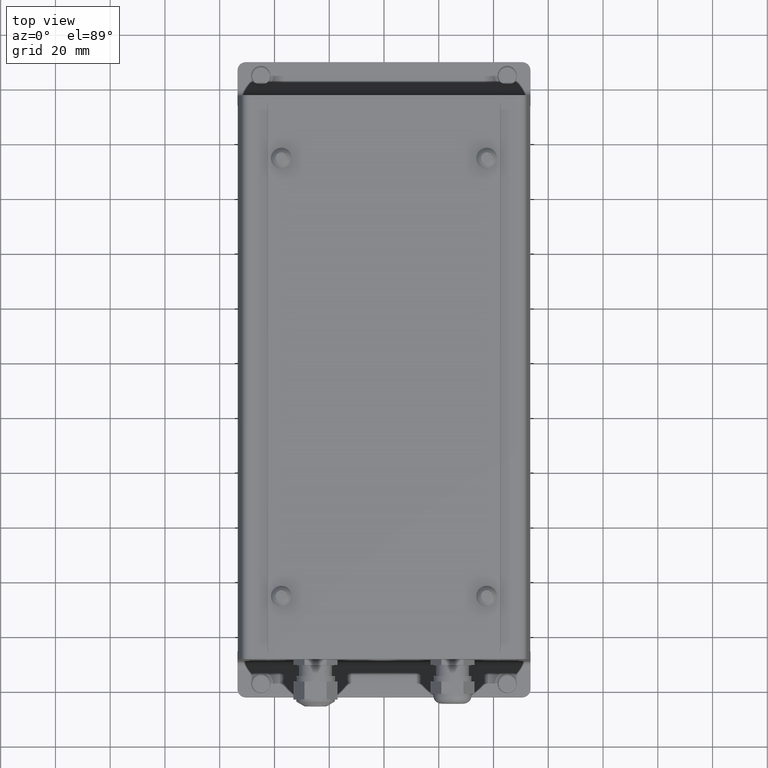
[diagram: clean part render]
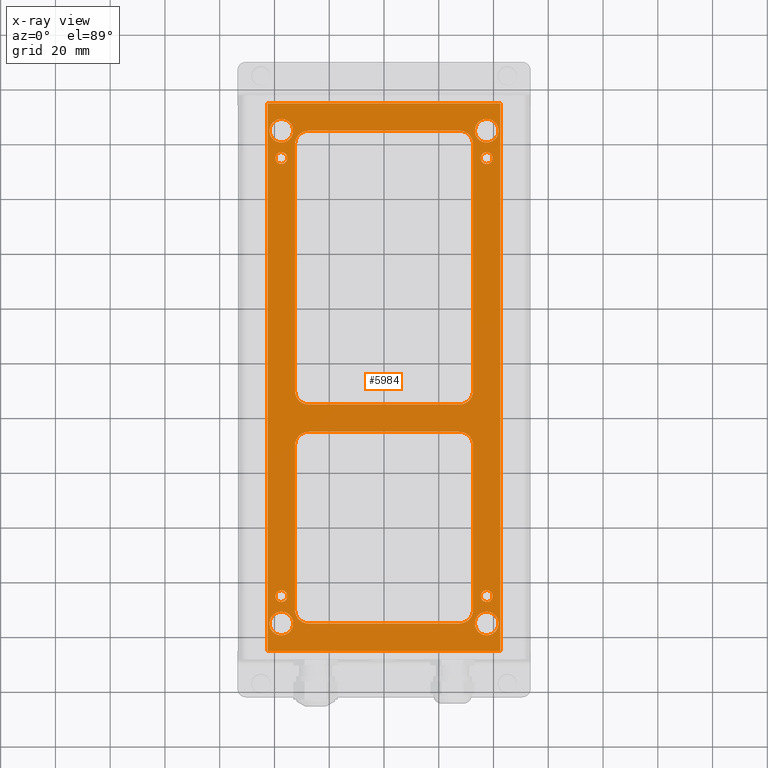
[diagram: x-ray — body ghosted, one internal face saturated and labeled with its STEP entity id]
A machine part, top view, then the same camera in x-ray: the body is ghosted and one INTERNAL B-rep face — a face not visible from any outside direction — is saturated and labeled: STEP entity #5984.
In plain terms, the highlighted planar face has unit normal (0, 0, 1).
Its self-contained STEP definition (entity closure, byte-faithful):
#152=CARTESIAN_POINT('',(-37.499999999999673,24.499934600000412,94.299999999999997));
#153=VERTEX_POINT('',#152);
#162=CARTESIAN_POINT('',(-37.499999999999673,24.499934600000412,85.700000000000003));
#163=VERTEX_POINT('',#162);
#164=CARTESIAN_POINT('',(-37.499999999999673,24.499934600000412,90.0));
#165=DIRECTION('',(0.0,-1.0,0.0));
#166=DIRECTION('',(0.0,0.0,1.0));
#167=AXIS2_PLACEMENT_3D('',#164,#165,#166);
#168=CIRCLE('',#167,4.299999999999999);
#169=EDGE_CURVE('',#163,#153,#168,.T.);
#194=CARTESIAN_POINT('',(37.500000000000327,24.499934600000412,94.299999999999997));
#195=VERTEX_POINT('',#194);
#204=CARTESIAN_POINT('',(37.500000000000327,24.499934600000412,85.700000000000003));
#205=VERTEX_POINT('',#204);
#206=CARTESIAN_POINT('',(37.500000000000327,24.499934600000412,90.0));
#207=DIRECTION('',(0.0,-1.0,0.0));
#208=DIRECTION('',(0.0,0.0,1.0));
#209=AXIS2_PLACEMENT_3D('',#206,#207,#208);
#210=CIRCLE('',#209,4.299999999999999);
#211=EDGE_CURVE('',#205,#195,#210,.T.);
#236=CARTESIAN_POINT('',(-37.499999999999631,24.499934600000412,-85.700000000000003));
#237=VERTEX_POINT('',#236);
#246=CARTESIAN_POINT('',(-37.499999999999631,24.499934600000412,-94.299999999999997));
#247=VERTEX_POINT('',#246);
#248=CARTESIAN_POINT('',(-37.499999999999631,24.499934600000412,-90.0));
#249=DIRECTION('',(0.0,-1.0,0.0));
#250=DIRECTION('',(0.0,0.0,1.0));
#251=AXIS2_PLACEMENT_3D('',#248,#249,#250);
#252=CIRCLE('',#251,4.299999999999999);
#253=EDGE_CURVE('',#247,#237,#252,.T.);
#278=CARTESIAN_POINT('',(37.500000000000369,24.499934600000412,-85.700000000000003));
#279=VERTEX_POINT('',#278);
#288=CARTESIAN_POINT('',(37.500000000000369,24.499934600000412,-94.299999999999997));
#289=VERTEX_POINT('',#288);
#290=CARTESIAN_POINT('',(37.500000000000369,24.499934600000412,-90.0));
#291=DIRECTION('',(0.0,-1.0,0.0));
#292=DIRECTION('',(0.0,0.0,1.0));
#293=AXIS2_PLACEMENT_3D('',#290,#291,#292);
#294=CIRCLE('',#293,4.299999999999999);
#295=EDGE_CURVE('',#289,#279,#294,.T.);
#320=CARTESIAN_POINT('',(-37.499999999999673,24.499934600000412,82.150000000000006));
#321=VERTEX_POINT('',#320);
#330=CARTESIAN_POINT('',(-37.499999999999673,24.499934600000412,77.849999999999994));
#331=VERTEX_POINT('',#330);
#332=CARTESIAN_POINT('',(-37.499999999999673,24.499934600000412,80.0));
#333=DIRECTION('',(0.0,-1.0,0.0));
#334=DIRECTION('',(0.0,0.0,1.0));
#335=AXIS2_PLACEMENT_3D('',#332,#333,#334);
#336=CIRCLE('',#335,2.150000000000000);
#337=EDGE_CURVE('',#331,#321,#336,.T.);
#362=CARTESIAN_POINT('',(37.500000000000327,24.499934600000412,82.150000000000006));
#363=VERTEX_POINT('',#362);
#372=CARTESIAN_POINT('',(37.500000000000327,24.499934600000412,77.849999999999994));
#373=VERTEX_POINT('',#372);
#374=CARTESIAN_POINT('',(37.500000000000327,24.499934600000412,80.0));
#375=DIRECTION('',(0.0,-1.0,0.0));
#376=DIRECTION('',(0.0,0.0,1.0));
#377=AXIS2_PLACEMENT_3D('',#374,#375,#376);
#378=CIRCLE('',#377,2.150000000000000);
#379=EDGE_CURVE('',#373,#363,#378,.T.);
#404=CARTESIAN_POINT('',(-37.499999999999638,24.499934600000412,-77.849999999999994));
#405=VERTEX_POINT('',#404);
#414=CARTESIAN_POINT('',(-37.499999999999638,24.499934600000412,-82.150000000000006));
#415=VERTEX_POINT('',#414);
#416=CARTESIAN_POINT('',(-37.499999999999638,24.499934600000412,-80.0));
#417=DIRECTION('',(0.0,-1.0,0.0));
#418=DIRECTION('',(0.0,0.0,1.0));
#419=AXIS2_PLACEMENT_3D('',#416,#417,#418);
#420=CIRCLE('',#419,2.150000000000000);
#421=EDGE_CURVE('',#415,#405,#420,.T.);
#446=CARTESIAN_POINT('',(37.500000000000355,24.499934600000412,-77.849999999999994));
#447=VERTEX_POINT('',#446);
#456=CARTESIAN_POINT('',(37.500000000000355,24.499934600000412,-82.150000000000006));
#457=VERTEX_POINT('',#456);
#458=CARTESIAN_POINT('',(37.500000000000355,24.499934600000412,-80.0));
#459=DIRECTION('',(0.0,-1.0,0.0));
#460=DIRECTION('',(0.0,0.0,1.0));
#461=AXIS2_PLACEMENT_3D('',#458,#459,#460);
#462=CIRCLE('',#461,2.150000000000000);
#463=EDGE_CURVE('',#457,#447,#462,.T.);
#761=CARTESIAN_POINT('',(37.500000000000355,24.499934600000412,-80.0));
#762=DIRECTION('',(0.0,-1.0,0.0));
#763=DIRECTION('',(0.0,0.0,1.0));
#764=AXIS2_PLACEMENT_3D('',#761,#762,#763);
#765=CIRCLE('',#764,2.150000000000000);
#766=EDGE_CURVE('',#447,#457,#765,.T.);
#785=CARTESIAN_POINT('',(-37.499999999999638,24.499934600000412,-80.0));
#786=DIRECTION('',(0.0,-1.0,0.0));
#787=DIRECTION('',(0.0,0.0,1.0));
#788=AXIS2_PLACEMENT_3D('',#785,#786,#787);
#789=CIRCLE('',#788,2.150000000000000);
#790=EDGE_CURVE('',#405,#415,#789,.T.);
#809=CARTESIAN_POINT('',(37.500000000000327,24.499934600000412,80.0));
#810=DIRECTION('',(0.0,-1.0,0.0));
#811=DIRECTION('',(0.0,0.0,1.0));
#812=AXIS2_PLACEMENT_3D('',#809,#810,#811);
#813=CIRCLE('',#812,2.150000000000000);
#814=EDGE_CURVE('',#363,#373,#813,.T.);
#833=CARTESIAN_POINT('',(-37.499999999999673,24.499934600000412,80.0));
#834=DIRECTION('',(0.0,-1.0,0.0));
#835=DIRECTION('',(0.0,0.0,1.0));
#836=AXIS2_PLACEMENT_3D('',#833,#834,#835);
#837=CIRCLE('',#836,2.150000000000000);
#838=EDGE_CURVE('',#321,#331,#837,.T.);
#857=CARTESIAN_POINT('',(37.500000000000369,24.499934600000412,-90.0));
#858=DIRECTION('',(0.0,-1.0,0.0));
#859=DIRECTION('',(0.0,0.0,1.0));
#860=AXIS2_PLACEMENT_3D('',#857,#858,#859);
#861=CIRCLE('',#860,4.299999999999999);
#862=EDGE_CURVE('',#279,#289,#861,.T.);
#881=CARTESIAN_POINT('',(-37.499999999999631,24.499934600000412,-90.0));
#882=DIRECTION('',(0.0,-1.0,0.0));
#883=DIRECTION('',(0.0,0.0,1.0));
#884=AXIS2_PLACEMENT_3D('',#881,#882,#883);
#885=CIRCLE('',#884,4.299999999999999);
#886=EDGE_CURVE('',#237,#247,#885,.T.);
#905=CARTESIAN_POINT('',(37.500000000000327,24.499934600000412,90.0));
#906=DIRECTION('',(0.0,-1.0,0.0));
#907=DIRECTION('',(0.0,0.0,1.0));
#908=AXIS2_PLACEMENT_3D('',#905,#906,#907);
#909=CIRCLE('',#908,4.299999999999999);
#910=EDGE_CURVE('',#195,#205,#909,.T.);
#929=CARTESIAN_POINT('',(-37.499999999999673,24.499934600000412,90.0));
#930=DIRECTION('',(0.0,-1.0,0.0));
#931=DIRECTION('',(0.0,0.0,1.0));
#932=AXIS2_PLACEMENT_3D('',#929,#930,#931);
#933=CIRCLE('',#932,4.299999999999999);
#934=EDGE_CURVE('',#153,#163,#933,.T.);
#944=CARTESIAN_POINT('',(27.499525929999692,24.499934600000412,89.999999999999943));
#945=VERTEX_POINT('',#944);
#946=CARTESIAN_POINT('',(32.499525929999692,24.499934600000412,84.999999999999943));
#947=VERTEX_POINT('',#946);
#948=CARTESIAN_POINT('',(27.499525929999692,24.499934600000412,84.999999999999943));
#949=DIRECTION('',(0.0,1.000000000000000,0.0));
#950=DIRECTION('',(0.707106781186547,0.0,0.707106781186547));
#951=AXIS2_PLACEMENT_3D('',#948,#949,#950);
#952=CIRCLE('',#951,4.999999999999999);
#953=EDGE_CURVE('',#945,#947,#952,.T.);
#987=CARTESIAN_POINT('',(32.499525929999692,24.499934600000412,24.999999999999943));
#988=VERTEX_POINT('',#987);
#989=CARTESIAN_POINT('',(32.499525929999692,24.499934600000412,24.999999999999943));
#990=DIRECTION('',(0.0,0.0,1.0));
#991=VECTOR('',#990,60.0);
#992=LINE('',#989,#991);
#993=EDGE_CURVE('',#988,#947,#992,.T.);
#1017=CARTESIAN_POINT('',(27.499525929999692,24.499934600000412,19.999999999999947));
#1018=VERTEX_POINT('',#1017);
#1019=CARTESIAN_POINT('',(27.499525929999692,24.499934600000412,24.999999999999943));
#1020=DIRECTION('',(0.0,1.000000000000000,0.0));
#1021=DIRECTION('',(0.707106781186547,0.0,-0.707106781186547));
#1022=AXIS2_PLACEMENT_3D('',#1019,#1020,#1021);
#1023=CIRCLE('',#1022,4.999999999999999);
#1024=EDGE_CURVE('',#988,#1018,#1023,.T.);
#1051=CARTESIAN_POINT('',(-27.500474070000294,24.499934600000412,19.999999999999954));
#1052=VERTEX_POINT('',#1051);
#1053=CARTESIAN_POINT('',(-27.500474070000294,24.499934600000412,19.999999999999954));
#1054=DIRECTION('',(1.0,0.0,0.0));
#1055=VECTOR('',#1054,54.999999999999986);
#1056=LINE('',#1053,#1055);
#1057=EDGE_CURVE('',#1052,#1018,#1056,.T.);
#1081=CARTESIAN_POINT('',(-32.500474070000287,24.499934600000412,84.999999999999943));
#1082=VERTEX_POINT('',#1081);
#1083=CARTESIAN_POINT('',(-27.500474070000287,24.499934600000412,89.999999999999943));
#1084=VERTEX_POINT('',#1083);
#1085=CARTESIAN_POINT('',(-27.500474070000287,24.499934600000412,84.999999999999943));
#1086=DIRECTION('',(0.0,1.000000000000000,0.0));
#1087=DIRECTION('',(-0.707106781186547,0.0,0.707106781186547));
#1088=AXIS2_PLACEMENT_3D('',#1085,#1086,#1087);
#1089=CIRCLE('',#1088,4.999999999999999);
#1090=EDGE_CURVE('',#1082,#1084,#1089,.T.);
#1131=CARTESIAN_POINT('',(27.499525929999692,24.499934600000412,89.999999999999943));
#1132=DIRECTION('',(-1.0,0.0,0.0));
#1133=VECTOR('',#1132,54.999999999999979);
#1134=LINE('',#1131,#1133);
#1135=EDGE_CURVE('',#945,#1084,#1134,.T.);
#1145=CARTESIAN_POINT('',(-32.500474070000294,24.499934600000412,24.999999999999950));
#1146=VERTEX_POINT('',#1145);
#1147=CARTESIAN_POINT('',(-27.500474070000294,24.499934600000412,24.999999999999950));
#1148=DIRECTION('',(0.0,1.000000000000000,0.0));
#1149=DIRECTION('',(-0.707106781186547,0.0,-0.707106781186547));
#1150=AXIS2_PLACEMENT_3D('',#1147,#1148,#1149);
#1151=CIRCLE('',#1150,4.999999999999999);
#1152=EDGE_CURVE('',#1052,#1146,#1151,.T.);
#1186=CARTESIAN_POINT('',(-32.500474070000287,24.499934600000412,84.999999999999943));
#1187=DIRECTION('',(0.0,0.0,-1.0));
#1188=VECTOR('',#1187,59.999999999999993);
#1189=LINE('',#1186,#1188);
#1190=EDGE_CURVE('',#1082,#1146,#1189,.T.);
#1200=CARTESIAN_POINT('',(-32.500474070000294,24.499934600000412,5.0));
#1201=VERTEX_POINT('',#1200);
#1202=CARTESIAN_POINT('',(-27.500474070000294,24.499934600000412,10.0));
#1203=VERTEX_POINT('',#1202);
#1204=CARTESIAN_POINT('',(-27.500474070000294,24.499934600000412,5.0));
#1205=DIRECTION('',(0.0,1.000000000000000,0.0));
#1206=DIRECTION('',(-0.707106781186547,0.0,0.707106781186547));
#1207=AXIS2_PLACEMENT_3D('',#1204,#1205,#1206);
#1208=CIRCLE('',#1207,4.999999999999999);
#1209=EDGE_CURVE('',#1201,#1203,#1208,.T.);
#1243=CARTESIAN_POINT('',(27.499525929999692,24.499934600000412,10.0));
#1244=VERTEX_POINT('',#1243);
#1245=CARTESIAN_POINT('',(27.499525929999692,24.499934600000412,10.0));
#1246=DIRECTION('',(-1.0,0.0,0.0));
#1247=VECTOR('',#1246,54.999999999999986);
#1248=LINE('',#1245,#1247);
#1249=EDGE_CURVE('',#1244,#1203,#1248,.T.);
#1273=CARTESIAN_POINT('',(32.499525929999692,24.499934600000412,5.0));
#1274=VERTEX_POINT('',#1273);
#1275=CARTESIAN_POINT('',(27.499525929999692,24.499934600000412,5.0));
#1276=DIRECTION('',(0.0,1.000000000000000,0.0));
#1277=DIRECTION('',(0.707106781186547,0.0,0.707106781186547));
#1278=AXIS2_PLACEMENT_3D('',#1275,#1276,#1277);
#1279=CIRCLE('',#1278,4.999999999999999);
#1280=EDGE_CURVE('',#1244,#1274,#1279,.T.);
#1307=CARTESIAN_POINT('',(32.499525929999692,24.499934600000412,-85.0));
#1308=VERTEX_POINT('',#1307);
#1309=CARTESIAN_POINT('',(32.499525929999692,24.499934600000412,-85.0));
#1310=DIRECTION('',(0.0,0.0,1.0));
#1311=VECTOR('',#1310,90.0);
#1312=LINE('',#1309,#1311);
#1313=EDGE_CURVE('',#1308,#1274,#1312,.T.);
#1337=CARTESIAN_POINT('',(27.499525929999692,24.499934600000412,-90.0));
#1338=VERTEX_POINT('',#1337);
#1339=CARTESIAN_POINT('',(27.499525929999692,24.499934600000412,-85.0));
#1340=DIRECTION('',(0.0,1.000000000000000,0.0));
#1341=DIRECTION('',(0.707106781186547,0.0,-0.707106781186547));
#1342=AXIS2_PLACEMENT_3D('',#1339,#1340,#1341);
#1343=CIRCLE('',#1342,4.999999999999999);
#1344=EDGE_CURVE('',#1308,#1338,#1343,.T.);
#1371=CARTESIAN_POINT('',(-27.500474070000308,24.499934600000412,-90.0));
#1372=VERTEX_POINT('',#1371);
#1373=CARTESIAN_POINT('',(-27.500474070000308,24.499934600000412,-90.0));
#1374=DIRECTION('',(1.0,0.0,0.0));
#1375=VECTOR('',#1374,55.0);
#1376=LINE('',#1373,#1375);
#1377=EDGE_CURVE('',#1372,#1338,#1376,.T.);
#1401=CARTESIAN_POINT('',(-32.500474070000308,24.499934600000412,-85.0));
#1402=VERTEX_POINT('',#1401);
#1403=CARTESIAN_POINT('',(-27.500474070000308,24.499934600000412,-85.0));
#1404=DIRECTION('',(0.0,1.000000000000000,0.0));
#1405=DIRECTION('',(-0.707106781186547,0.0,-0.707106781186547));
#1406=AXIS2_PLACEMENT_3D('',#1403,#1404,#1405);
#1407=CIRCLE('',#1406,4.999999999999999);
#1408=EDGE_CURVE('',#1372,#1402,#1407,.T.);
#1442=CARTESIAN_POINT('',(-32.500474070000294,24.499934600000412,5.0));
#1443=DIRECTION('',(0.0,0.0,-1.0));
#1444=VECTOR('',#1443,90.0);
#1445=LINE('',#1442,#1444);
#1446=EDGE_CURVE('',#1201,#1402,#1445,.T.);
#5876=CARTESIAN_POINT('',(-42.499999999999673,24.499934600000412,99.999999999999943));
#5877=VERTEX_POINT('',#5876);
#5884=CARTESIAN_POINT('',(-42.499999999999673,24.499934600000412,-100.0));
#5885=VERTEX_POINT('',#5884);
#5886=CARTESIAN_POINT('',(-42.499999999999673,24.499934600000412,-100.0));
#5887=DIRECTION('',(0.0,0.0,1.0));
#5888=VECTOR('',#5887,199.999999999999940);
#5889=LINE('',#5886,#5888);
#5890=EDGE_CURVE('',#5885,#5877,#5889,.T.);
#5902=CARTESIAN_POINT('',(-42.499999999999673,24.499934600000412,-100.0));
#5903=DIRECTION('',(0.0,1.0,0.0));
#5904=DIRECTION('',(0.0,0.0,1.0));
#5905=AXIS2_PLACEMENT_3D('',#5902,#5903,#5904);
#5906=PLANE('',#5905);
#5907=CARTESIAN_POINT('',(42.500000000000327,24.499934600000412,99.999999999999943));
#5908=VERTEX_POINT('',#5907);
#5909=CARTESIAN_POINT('',(-42.499999999999673,24.499934600000412,99.999999999999943));
#5910=DIRECTION('',(1.0,0.0,0.0));
#5911=VECTOR('',#5910,85.0);
#5912=LINE('',#5909,#5911);
#5913=EDGE_CURVE('',#5877,#5908,#5912,.T.);
#5914=ORIENTED_EDGE('',*,*,#5913,.T.);
#5915=CARTESIAN_POINT('',(42.500000000000327,24.499934600000412,-100.0));
#5916=VERTEX_POINT('',#5915);
#5917=CARTESIAN_POINT('',(42.500000000000327,24.499934600000412,-100.0));
#5918=DIRECTION('',(0.0,0.0,1.0));
#5919=VECTOR('',#5918,199.999999999999940);
#5920=LINE('',#5917,#5919);
#5921=EDGE_CURVE('',#5916,#5908,#5920,.T.);
#5922=ORIENTED_EDGE('',*,*,#5921,.F.);
#5923=CARTESIAN_POINT('',(-42.499999999999673,24.499934600000412,-100.0));
#5924=DIRECTION('',(1.0,0.0,0.0));
#5925=VECTOR('',#5924,85.0);
#5926=LINE('',#5923,#5925);
#5927=EDGE_CURVE('',#5885,#5916,#5926,.T.);
#5928=ORIENTED_EDGE('',*,*,#5927,.F.);
#5929=ORIENTED_EDGE('',*,*,#5890,.T.);
#5930=EDGE_LOOP('',(#5914,#5922,#5928,#5929));
#5931=FACE_OUTER_BOUND('',#5930,.T.);
#5932=ORIENTED_EDGE('',*,*,#766,.T.);
#5933=ORIENTED_EDGE('',*,*,#463,.T.);
#5934=EDGE_LOOP('',(#5932,#5933));
#5935=FACE_BOUND('',#5934,.T.);
#5936=ORIENTED_EDGE('',*,*,#790,.T.);
#5937=ORIENTED_EDGE('',*,*,#421,.T.);
#5938=EDGE_LOOP('',(#5936,#5937));
#5939=FACE_BOUND('',#5938,.T.);
#5940=ORIENTED_EDGE('',*,*,#814,.T.);
#5941=ORIENTED_EDGE('',*,*,#379,.T.);
#5942=EDGE_LOOP('',(#5940,#5941));
#5943=FACE_BOUND('',#5942,.T.);
#5944=ORIENTED_EDGE('',*,*,#838,.T.);
#5945=ORIENTED_EDGE('',*,*,#337,.T.);
#5946=EDGE_LOOP('',(#5944,#5945));
#5947=FACE_BOUND('',#5946,.T.);
#5948=ORIENTED_EDGE('',*,*,#862,.T.);
#5949=ORIENTED_EDGE('',*,*,#295,.T.);
#5950=EDGE_LOOP('',(#5948,#5949));
#5951=FACE_BOUND('',#5950,.T.);
#5952=ORIENTED_EDGE('',*,*,#886,.T.);
#5953=ORIENTED_EDGE('',*,*,#253,.T.);
#5954=EDGE_LOOP('',(#5952,#5953));
#5955=FACE_BOUND('',#5954,.T.);
#5956=ORIENTED_EDGE('',*,*,#910,.T.);
#5957=ORIENTED_EDGE('',*,*,#211,.T.);
#5958=EDGE_LOOP('',(#5956,#5957));
#5959=FACE_BOUND('',#5958,.T.);
#5960=ORIENTED_EDGE('',*,*,#934,.T.);
#5961=ORIENTED_EDGE('',*,*,#169,.T.);
#5962=EDGE_LOOP('',(#5960,#5961));
#5963=FACE_BOUND('',#5962,.T.);
#5964=ORIENTED_EDGE('',*,*,#1249,.T.);
#5965=ORIENTED_EDGE('',*,*,#1209,.F.);
#5966=ORIENTED_EDGE('',*,*,#1446,.T.);
#5967=ORIENTED_EDGE('',*,*,#1408,.F.);
#5968=ORIENTED_EDGE('',*,*,#1377,.T.);
#5969=ORIENTED_EDGE('',*,*,#1344,.F.);
#5970=ORIENTED_EDGE('',*,*,#1313,.T.);
#5971=ORIENTED_EDGE('',*,*,#1280,.F.);
#5972=EDGE_LOOP('',(#5964,#5965,#5966,#5967,#5968,#5969,#5970,#5971));
#5973=FACE_BOUND('',#5972,.T.);
#5974=ORIENTED_EDGE('',*,*,#1135,.T.);
#5975=ORIENTED_EDGE('',*,*,#1090,.F.);
#5976=ORIENTED_EDGE('',*,*,#1190,.T.);
#5977=ORIENTED_EDGE('',*,*,#1152,.F.);
#5978=ORIENTED_EDGE('',*,*,#1057,.T.);
#5979=ORIENTED_EDGE('',*,*,#1024,.F.);
#5980=ORIENTED_EDGE('',*,*,#993,.T.);
#5981=ORIENTED_EDGE('',*,*,#953,.F.);
#5982=EDGE_LOOP('',(#5974,#5975,#5976,#5977,#5978,#5979,#5980,#5981));
#5983=FACE_BOUND('',#5982,.T.);
#5984=ADVANCED_FACE('',(#5931,#5935,#5939,#5943,#5947,#5951,#5955,#5959,#5963,#5973,#5983),#5906,.T.);